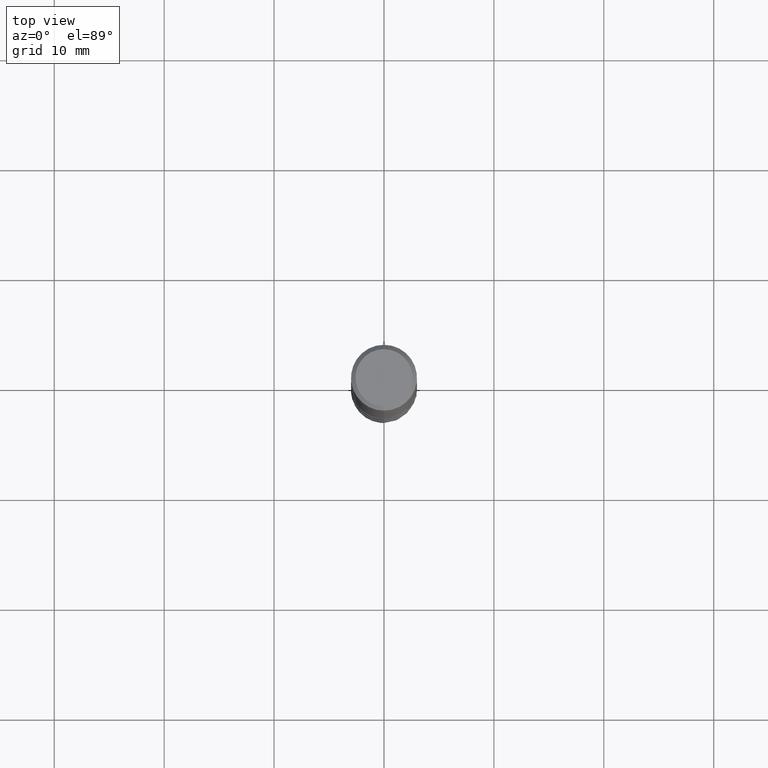
[diagram: clean part render]
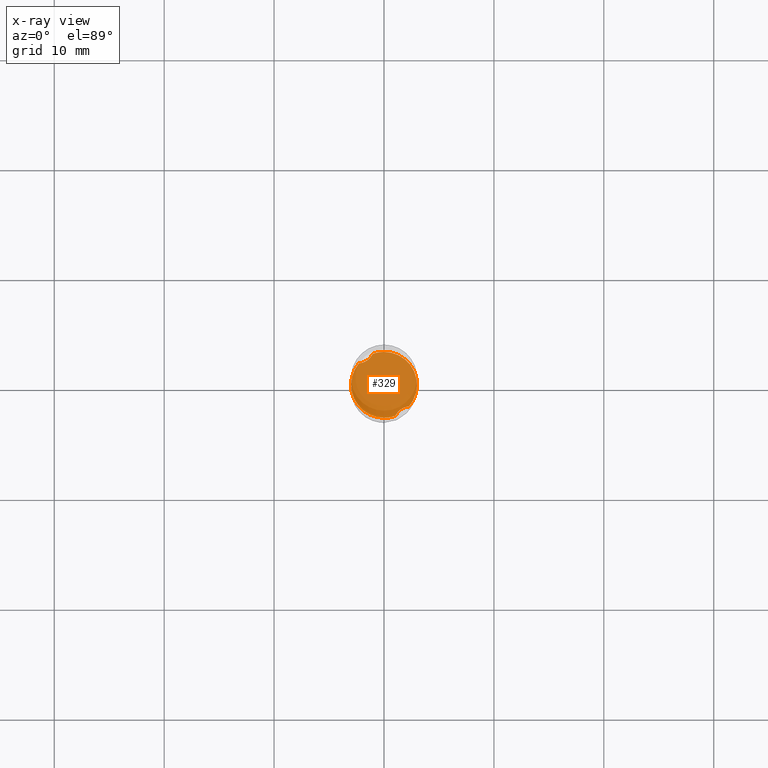
[diagram: x-ray — body ghosted, one internal face saturated and labeled with its STEP entity id]
A machine part, top view, then the same camera in x-ray: the body is ghosted and one INTERNAL B-rep face — a face not visible from any outside direction — is saturated and labeled: STEP entity #329.
In plain terms, the highlighted planar face has unit normal (-0, 0, 1).
Its self-contained STEP definition (entity closure, byte-faithful):
#259=VERTEX_POINT('',#718);
#317=VERTEX_POINT('',#781);
#329=ADVANCED_FACE('',(#795),#796,.T.);
#337=EDGE_CURVE('',#627,#689,#805,.T.);
#349=EDGE_CURVE('',#677,#471,#817,.T.);
#361=EDGE_CURVE('',#677,#317,#829,.T.);
#471=VERTEX_POINT('',#949);
#497=EDGE_CURVE('',#471,#689,#978,.T.);
#525=EDGE_CURVE('',#259,#317,#1008,.T.);
#627=VERTEX_POINT('',#1119);
#643=EDGE_CURVE('',#627,#259,#1137,.T.);
#677=VERTEX_POINT('',#1175);
#689=VERTEX_POINT('',#1188);
#718=CARTESIAN_POINT('',(-3.66824618936939E-016,2.9999,-38.0));
#781=CARTESIAN_POINT('',(2.27206572632338,-1.95885613184496,-38.0));
#795=FACE_OUTER_BOUND('',#2111,.T.);
#796=PLANE('',#2112);
#805=B_SPLINE_CURVE_WITH_KNOTS('',3,(#2121,#2122,#2123,#2124,#2125,#2126,#2127,#2128,#2129,#2130,#2131,#2132),.UNSPECIFIED.,.F.,.F.,(4,2,2,2,2,4),(0.0,0.654406929016848,1.25104256480503,1.85055315832258,2.23709525534774,2.64083528858175),.UNSPECIFIED.);
#817=CIRCLE('',#2145,2.9999);
#829=B_SPLINE_CURVE_WITH_KNOTS('',3,(#2176,#2177,#2178,#2179,#2180,#2181,#2182,#2183,#2184,#2185,#2186,#2187),.UNSPECIFIED.,.F.,.F.,(4,2,2,2,2,4),(0.0,0.654406929016871,1.25104256480515,1.85055315832275,2.23709525534792,2.64083528858207),.UNSPECIFIED.);
#949=CARTESIAN_POINT('',(3.67704082919491E-016,-2.9999,-38.0));
#978=CIRCLE('',#3181,2.9999);
#1008=CIRCLE('',#3261,2.9999);
#1119=CARTESIAN_POINT('',(-1.02407252913775,2.81969421481575,-38.0));
#1137=CIRCLE('',#4766,2.9999);
#1175=CARTESIAN_POINT('',(1.02407252913775,-2.81969421481575,-38.0));
#1188=CARTESIAN_POINT('',(-2.27206572632338,1.95885613184496,-38.0));
#2111=EDGE_LOOP('',(#5051,#5052,#5053,#5054,#5055,#5056));
#2112=AXIS2_PLACEMENT_3D('',#5057,#5058,#5059);
#2121=CARTESIAN_POINT('',(-0.931774831504151,3.0499,-38.0));
#2122=CARTESIAN_POINT('',(-0.998519458196372,2.84222642547211,-38.0));
#2123=CARTESIAN_POINT('',(-1.10173213189737,2.64967181361699,-37.9999999999907));
#2124=CARTESIAN_POINT('',(-1.3716658274244,2.33302607926301,-37.9999999999907));
#2125=CARTESIAN_POINT('',(-1.52735593364047,2.20998135893307,-38.0000000000005));
#2126=CARTESIAN_POINT('',(-1.88198932111975,2.0301080947749,-38.0000000000005));
#2127=CARTESIAN_POINT('',(-2.07476835428266,1.9767944436065,-38.0000000000001));
#2128=CARTESIAN_POINT('',(-2.40158904884973,1.94707885840042,-38.0000000000001));
#2129=CARTESIAN_POINT('',(-2.53056314194904,1.95021991356856,-38.0));
#2130=CARTESIAN_POINT('',(-2.79155213698915,1.9837583742446,-38.0));
#2131=CARTESIAN_POINT('',(-2.92273417141631,2.0152610206772,-38.0));
#2132=CARTESIAN_POINT('',(-3.0499,2.05906285740472,-38.0));
#2145=AXIS2_PLACEMENT_3D('',#5071,#5072,#5073);
#2176=CARTESIAN_POINT('',(0.931774831504153,-3.0499,-38.0));
#2177=CARTESIAN_POINT('',(0.998519458196376,-2.84222642547211,-38.0));
#2178=CARTESIAN_POINT('',(1.10173213189737,-2.64967181361699,-37.9999999999907));
#2179=CARTESIAN_POINT('',(1.37166582742442,-2.33302607926299,-37.9999999999907));
#2180=CARTESIAN_POINT('',(1.52735593364049,-2.20998135893307,-38.0000000000005));
#2181=CARTESIAN_POINT('',(1.88198932111974,-2.03010809477492,-38.0000000000005));
#2182=CARTESIAN_POINT('',(2.07476835428261,-1.9767944436065,-38.0000000000001));
#2183=CARTESIAN_POINT('',(2.40158904884976,-1.94707885840042,-38.0000000000001));
#2184=CARTESIAN_POINT('',(2.5305631419491,-1.95021991356857,-38.0));
#2185=CARTESIAN_POINT('',(2.79155213698914,-1.98375837424461,-38.0));
#2186=CARTESIAN_POINT('',(2.92273417141628,-2.01526102067719,-38.0));
#2187=CARTESIAN_POINT('',(3.0499,-2.05906285740472,-38.0));
#3181=AXIS2_PLACEMENT_3D('',#5253,#5254,#5255);
#3261=AXIS2_PLACEMENT_3D('',#5280,#5281,#5282);
#4766=AXIS2_PLACEMENT_3D('',#5426,#5427,#5428);
#5051=ORIENTED_EDGE('',*,*,#361,.T.);
#5052=ORIENTED_EDGE('',*,*,#525,.F.);
#5053=ORIENTED_EDGE('',*,*,#643,.F.);
#5054=ORIENTED_EDGE('',*,*,#337,.T.);
#5055=ORIENTED_EDGE('',*,*,#497,.F.);
#5056=ORIENTED_EDGE('',*,*,#349,.F.);
#5057=CARTESIAN_POINT('',(0.0,1.49995,-38.0));
#5058=DIRECTION('',(-0.0,0.0,1.0));
#5059=DIRECTION('',(0.0,-1.0,0.0));
#5071=CARTESIAN_POINT('',(0.0,0.0,-38.0));
#5072=DIRECTION('',(0.0,0.0,-1.0));
#5073=DIRECTION('',(0.0,1.0,0.0));
#5253=CARTESIAN_POINT('',(0.0,0.0,-38.0));
#5254=DIRECTION('',(0.0,0.0,-1.0));
#5255=DIRECTION('',(0.0,1.0,0.0));
#5280=CARTESIAN_POINT('',(0.0,0.0,-38.0));
#5281=DIRECTION('',(0.0,0.0,-1.0));
#5282=DIRECTION('',(0.0,1.0,0.0));
#5426=CARTESIAN_POINT('',(0.0,0.0,-38.0));
#5427=DIRECTION('',(0.0,0.0,-1.0));
#5428=DIRECTION('',(0.0,1.0,0.0));